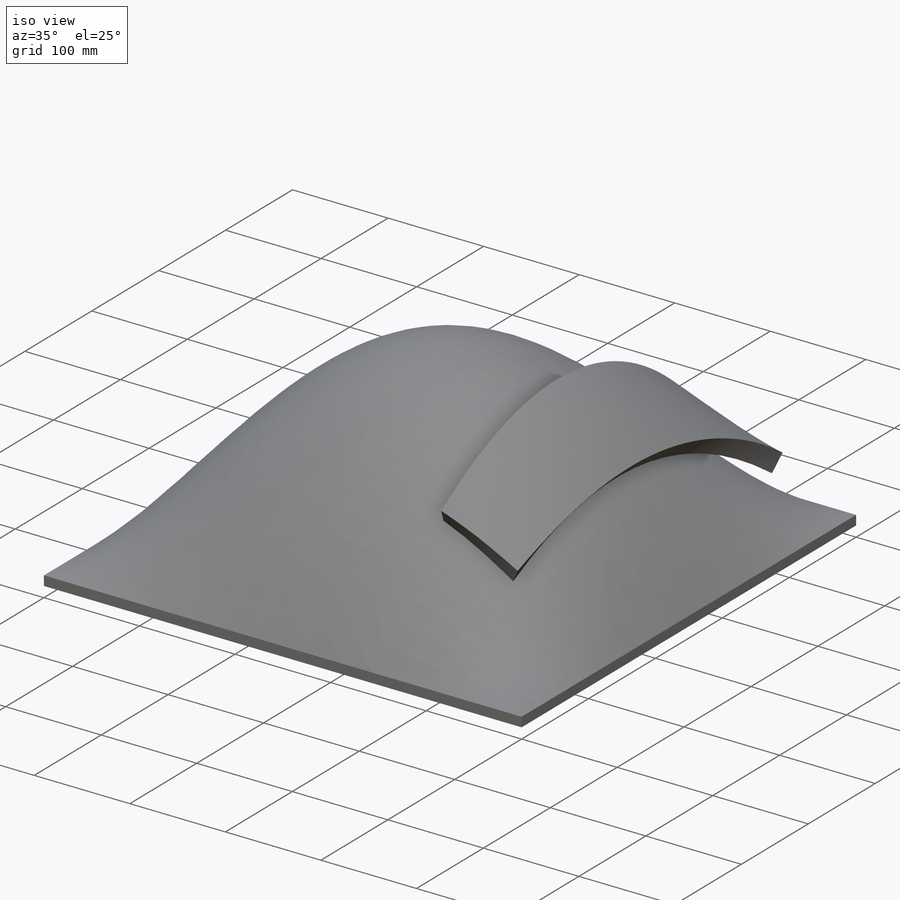
[diagram: iso view]
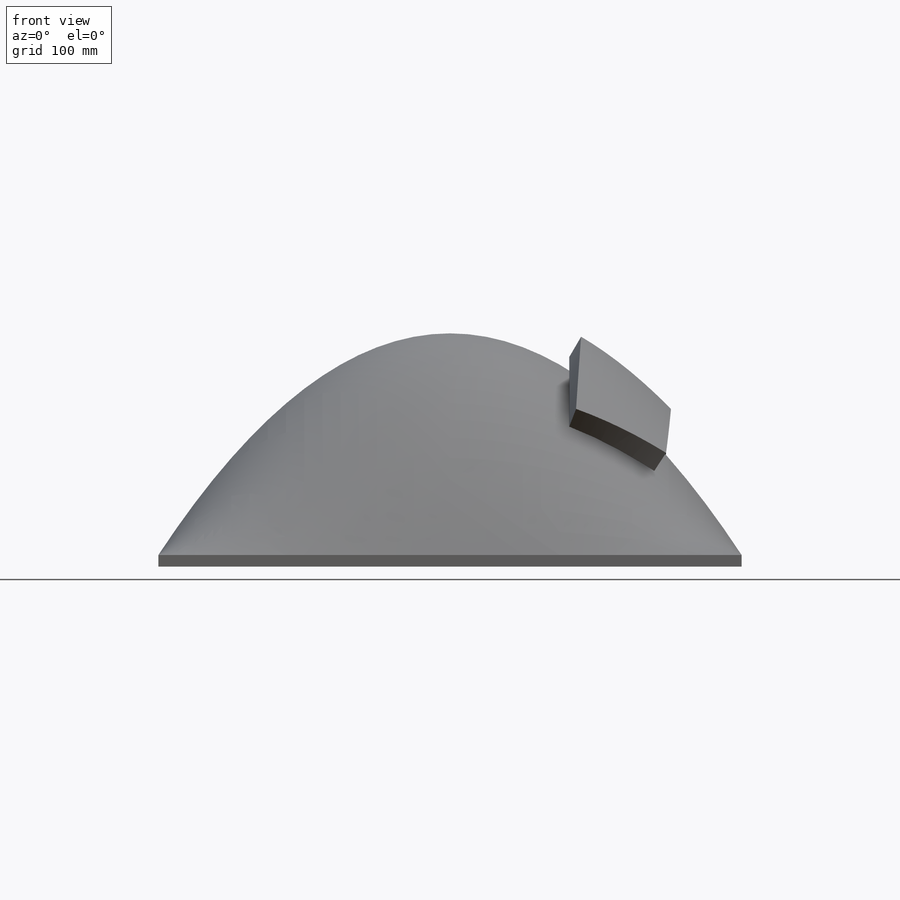
[diagram: front view]
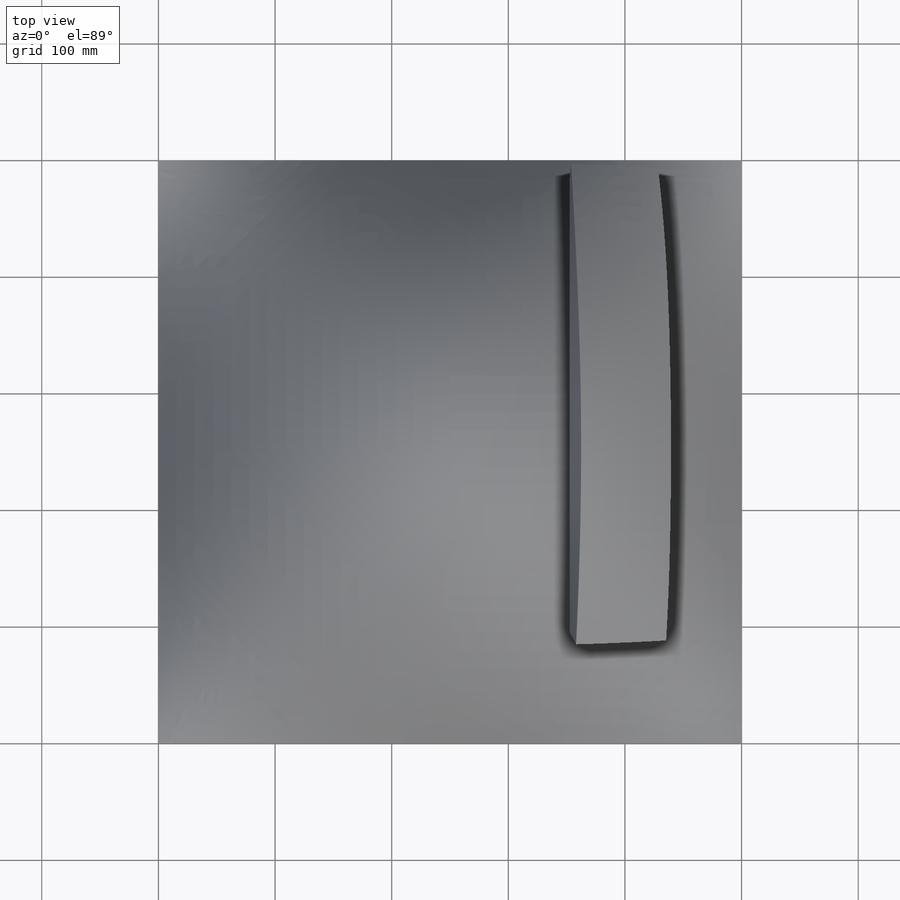
[diagram: top view]
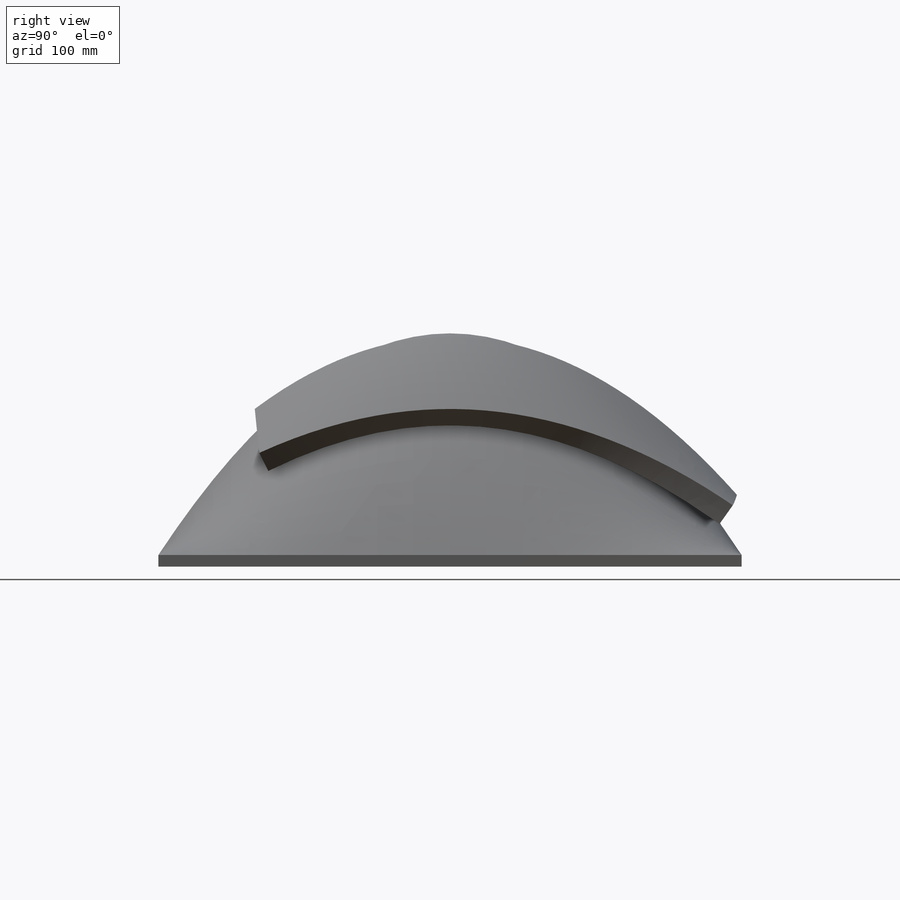
[diagram: right view]
SOLIDWORKS PART (.sldprt)
format: sldprt  version: not decoded by parser v0  size: 356,352 bytes
history: native  units: mm
features: sketch x17, dome x13, plane x4, material x1, extrude x1 (+9 scaffold rows collapsed)
feature tree (45):
  scaffold x9  (default folders/planes/origin — collapsed)
  material  "Material <nicht festgelegt>"
  plane  "Ebene vorne"
  plane  "Ebene oben"
  plane  "Ebene rechts"
  sketch  "Skizze1"  dims[D1=500.0mm D2=500.0mm]
  extrude  "Aufsatz-Linear austragen1"  Depth=10mm
  dome  "Kuppel1"
  sketch  "Skizze2"
  plane  "Ebene1"  Offset=250mm
  sketch  "Skizze4"
  sketch  "Skizze5"  dims[D1=20.0mm]
  dome  "Kurve5"
  sketch  "Skizze6"  dims[D1=20.0mm]
  dome  "Kurve6"
  sketch  "Skizze7"  dims[D1=20.0mm]
  dome  "Kurve7"
  sketch  "Skizze8"  dims[D1=20.0mm]
  dome  "Kurve8"
  sketch  "Skizze9"  dims[D1=20.0mm]
  dome  "Kurve9"
  sketch  "Skizze10"  dims[D1=20.0mm]
  dome  "Kurve10"
  sketch  "Skizze11"  dims[D1=20.0mm]
  dome  "Kurve11"
  sketch  "Skizze12"  dims[D1=20.0mm]
  dome  "Kurve12"
  sketch  "Skizze13"  dims[D1=20.0mm]
  dome  "Kurve13"
  sketch  "Skizze14"  dims[D1=20.0mm]
  dome  "Kurve14"
  sketch  "Skizze15"  dims[D1=20.0mm]
  dome  "Kurve15"
  sketch  "Skizze16"  dims[D1=20.0mm]
  dome  "Kurve16"
  sketch  "Skizze18"  dims[c1.D1=10.0mm c1.D2=10.0mm c1.D3=0.0mm c1.D4=0.5mm c2.D1=10.0mm]
  sketch  "Skizze19"  dims[D1=20.0mm]
decode coverage: 16 of 31 modeling features carry decoded parameters
note: suppression state not decoded; provenance and decode notes live in map.json
